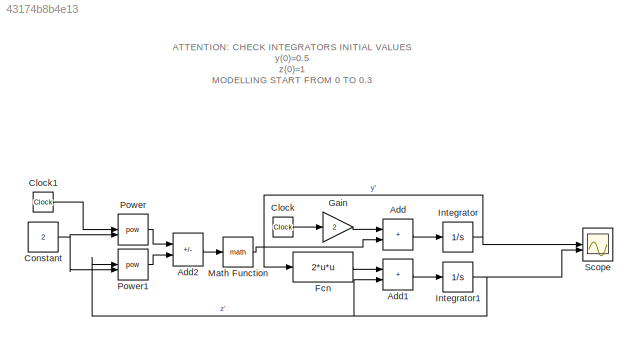
MODEL slx_43174b8b4e13
KIND model
CONFIG AbsTol = auto
CONFIG EnableMultiTasking = off
CONFIG FixedStep = auto
CONFIG MaxStep = auto
CONFIG MinStep = auto
CONFIG RelTol = 1e-3
CONFIG SampleTimeConstraint = Unconstrained
CONFIG SolverName = ode45
CONFIG StartTime = 0
CONFIG StopTime = 0.3
BLOCK [Sum] Add
  IconShape = rectangular
BLOCK [Sum] Add1
  IconShape = rectangular
BLOCK [Sum] Add2
  IconShape = rectangular
  Inputs = --
BLOCK [Clock] Clock
BLOCK [Clock] Clock1
BLOCK [Constant] Constant
  Value = 2
BLOCK [Fcn] Fcn
  Expr = 2*u*u
BLOCK [Gain] Gain
  Gain = 2
BLOCK [Integrator] Integrator
  InitialCondition = 0.5
BLOCK [Integrator] Integrator1
  InitialCondition = 1
BLOCK [Math] Math Function
BLOCK [Math] Power
  Operator = pow
BLOCK [Math] Power1
  Operator = pow
BLOCK [Scope] Scope
  Floating = off
  NumInputPorts = 2
  ScopeSpecificationString = Simulink.scopes.TimeScopeBlockCfg('CurrentConfiguration', extmgr.ConfigurationSet(extmgr.Configuration('Core','General UI',true),extmgr.Configuration('Core','Source UI',true),extmgr.Configuration('Sources','WiredSimulink',true),extmgr.Configuration('Visuals','Time Domain',true,'SerializedDisplays',{struct('MinYLimReal','0.48088','MaxYLimReal','0.67208','YLabelReal','','MinYLimMag','0.48088','MaxYL...<+1931ch>
ANNOTATION (root): ATTENTION: CHECK INTEGRATORS INITIAL VALUES y(0)=0.5 z(0)=1 MODELLING START FROM 0 TO 0.3
LINE Add1:1 -> Integrator1:1
LINE Add2:1 -> Math Function:1
LINE Add:1 -> Integrator:1
LINE Clock1:1 -> Power:1
LINE Clock:1 -> Gain:1
NET Constant:1 -> Power1:2, Power:2
LINE Fcn:1 -> Add1:1
LINE Gain:1 -> Add:1
NET Integrator1:1 -> Add1:2, Power1:1, Scope:2
NET Integrator:1 -> Fcn:1, Scope:1
LINE Math Function:1 -> Add:2
LINE Power1:1 -> Add2:2
LINE Power:1 -> Add2:1
note: NET lines group one-source signal fan-out (src -> all destinations, sorted); 1:1 wires keep LINE
